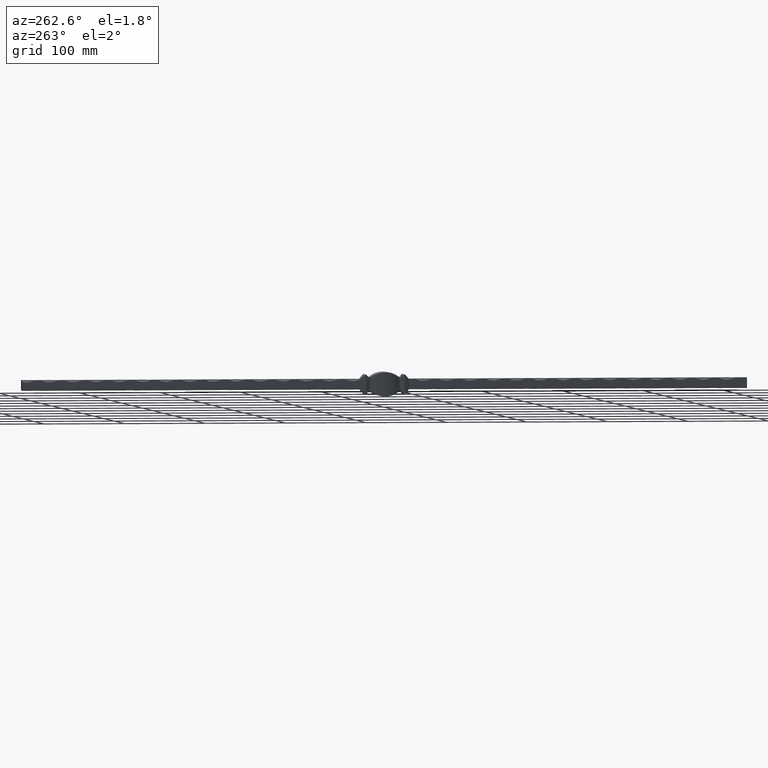
[diagram: clean part render]
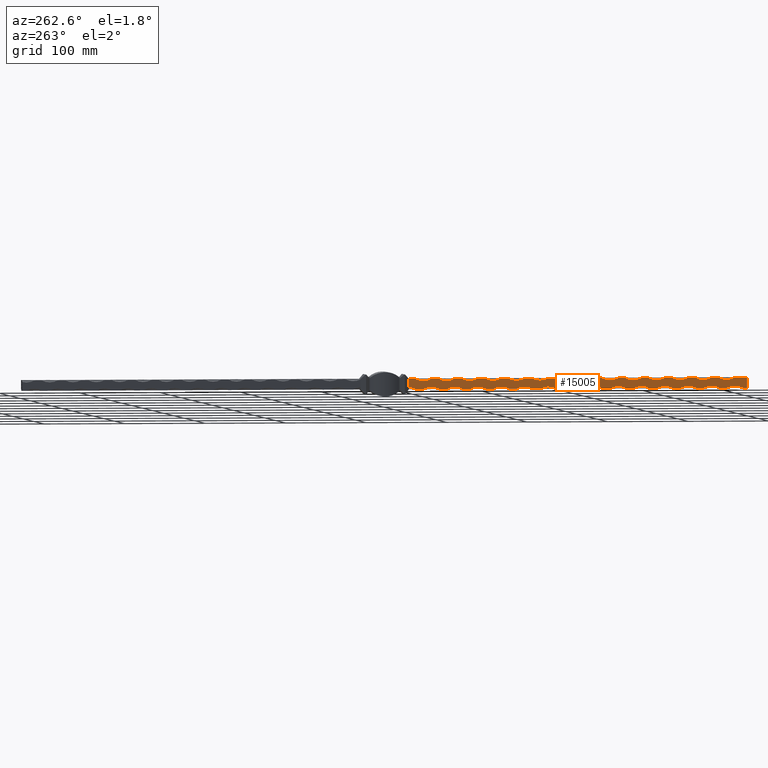
[diagram: same view with one face highlighted and labeled with its STEP entity id]
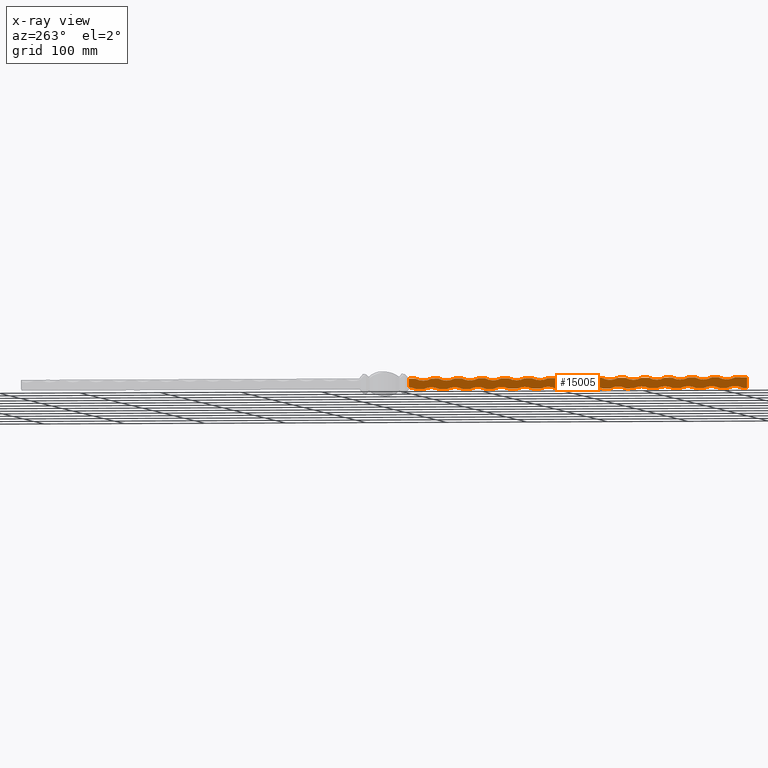
[diagram: x-ray of the same camera — body ghosted, the highlighted face saturated]
A machine part, auxiliary view. The second image highlights one B-rep face of the part: STEP entity #15005.
The next image is the same camera in x-ray: the body ghosted, the highlighted face saturated — about 0% of this face is hidden behind the body in this view.
In plain terms, the highlighted planar face has unit normal (1, 0, -0).
Its self-contained STEP definition (entity closure, byte-faithful):
#12 = EDGE_CURVE ( 'NONE', #5733, #3149, #8410, .T. ) ;
#15 = VECTOR ( 'NONE', #12182, 1000.000000000000000 ) ;
#52 = CARTESIAN_POINT ( 'NONE',  ( -6.499999999999999112, 450.0000000000000000, 6.500000000000000888 ) ) ;
#58 = VECTOR ( 'NONE', #1897, 1000.000000000000000 ) ;
#85 = CARTESIAN_POINT ( 'NONE',  ( -6.500000000000082601, -415.0000000000000000, 6.500000000000000888 ) ) ;
#94 = CARTESIAN_POINT ( 'NONE',  ( -6.500000000000000888, 450.0000000000000000, -6.499999999999999112 ) ) ;
#238 = AXIS2_PLACEMENT_3D ( 'NONE', #3707, #8437, #9771 ) ;
#247 = CARTESIAN_POINT ( 'NONE',  ( -6.500000000000002665, -77.00000000000001421, -6.499999999999999112 ) ) ;
#270 = CARTESIAN_POINT ( 'NONE',  ( -6.499999999999999112, -87.00000000000005684, 6.500000000000000888 ) ) ;
#295 = EDGE_CURVE ( 'NONE', #1562, #1269, #7463, .T. ) ;
#358 = CARTESIAN_POINT ( 'NONE',  ( -6.500000000000055067, -222.0000000000000284, 25.24999999999998934 ) ) ;
#397 = CARTESIAN_POINT ( 'NONE',  ( -6.500000000000005329, -290.0000000000000568, -25.24999999999997513 ) ) ;
#418 = AXIS2_PLACEMENT_3D ( 'NONE', #2967, #15017, #11486 ) ;
#428 = VECTOR ( 'NONE', #9554, 1000.000000000000000 ) ;
#471 = CARTESIAN_POINT ( 'NONE',  ( -6.500000000000002665, -30.00000000000000000, -4.023542452872613140 ) ) ;
#489 = VERTEX_POINT ( 'NONE', #2640 ) ;
#500 = ORIENTED_EDGE ( 'NONE', *, *, #717, .F. ) ;
#576 = ORIENTED_EDGE ( 'NONE', *, *, #12781, .T. ) ;
#577 = EDGE_CURVE ( 'NONE', #3587, #14415, #8593, .T. ) ;
#607 = VECTOR ( 'NONE', #6038, 1000.000000000000000 ) ;
#618 = EDGE_CURVE ( 'NONE', #1461, #12590, #995, .T. ) ;
#659 = CARTESIAN_POINT ( 'NONE',  ( -6.500000000000077272, -386.0000000000000000, 6.500000000000000888 ) ) ;
#669 = DIRECTION ( 'NONE',  ( 1.000000000000000000, 0.000000000000000000, -1.334402673828313093E-16 ) ) ;
#670 = ORIENTED_EDGE ( 'NONE', *, *, #14378, .F. ) ;
#706 = DIRECTION ( 'NONE',  ( 1.334402673828313339E-16, 0.000000000000000000, 1.000000000000000000 ) ) ;
#717 = EDGE_CURVE ( 'NONE', #5733, #8425, #13152, .T. ) ;
#732 = CARTESIAN_POINT ( 'NONE',  ( -6.499999999999999112, -58.00000000000003553, 6.500000000000000888 ) ) ;
#882 = VECTOR ( 'NONE', #7130, 1000.000000000000000 ) ;
#971 = DIRECTION ( 'NONE',  ( -0.000000000000000000, -1.000000000000000000, -0.000000000000000000 ) ) ;
#995 = CIRCLE ( 'NONE', #3431, 21.24999999999999645 ) ;
#1012 = CARTESIAN_POINT ( 'NONE',  ( -6.500000000000002665, -425.0000000000000000, -6.499999999999999112 ) ) ;
#1111 = EDGE_CURVE ( 'NONE', #2373, #1284, #5195, .T. ) ;
#1114 = AXIS2_PLACEMENT_3D ( 'NONE', #11058, #1395, #10894 ) ;
#1118 = DIRECTION ( 'NONE',  ( -0.000000000000000000, -1.000000000000000000, -0.000000000000000000 ) ) ;
#1189 = VERTEX_POINT ( 'NONE', #3457 ) ;
#1268 = EDGE_CURVE ( 'NONE', #3725, #3806, #14650, .T. ) ;
#1269 = VERTEX_POINT ( 'NONE', #10102 ) ;
#1273 = CARTESIAN_POINT ( 'NONE',  ( -6.500000000000000888, 450.0000000000000000, -6.499999999999999112 ) ) ;
#1284 = VERTEX_POINT ( 'NONE', #6284 ) ;
#1360 = VERTEX_POINT ( 'NONE', #10579 ) ;
#1369 = ORIENTED_EDGE ( 'NONE', *, *, #14936, .T. ) ;
#1380 = CARTESIAN_POINT ( 'NONE',  ( -6.499999999999999112, -377.0000000000002274, 6.500000000000000888 ) ) ;
#1395 = DIRECTION ( 'NONE',  ( 1.000000000000000000, 0.000000000000000000, -1.334402673828313093E-16 ) ) ;
#1461 = VERTEX_POINT ( 'NONE', #1012 ) ;
#1473 = CARTESIAN_POINT ( 'NONE',  ( -6.500000000000002665, -280.0000000000000000, -6.499999999999999112 ) ) ;
#1518 = DIRECTION ( 'NONE',  ( -1.224510688924805095E-16, 0.000000000000000000, -1.000000000000000000 ) ) ;
#1534 = CIRCLE ( 'NONE', #10071, 21.24999999999999645 ) ;
#1562 = VERTEX_POINT ( 'NONE', #15690 ) ;
#1571 = AXIS2_PLACEMENT_3D ( 'NONE', #7701, #9076, #8921 ) ;
#1603 = DIRECTION ( 'NONE',  ( -1.224510688924805095E-16, 0.000000000000000000, -1.000000000000000000 ) ) ;
#1638 = AXIS2_PLACEMENT_3D ( 'NONE', #1991, #11707, #9148 ) ;
#1672 = DIRECTION ( 'NONE',  ( -1.000000000000000000, -0.000000000000000000, 1.334402673828313093E-16 ) ) ;
#1685 = DIRECTION ( 'NONE',  ( -1.224510688924805095E-16, 0.000000000000000000, -1.000000000000000000 ) ) ;
#1706 = CARTESIAN_POINT ( 'NONE',  ( -6.500000000000060396, -251.0000000000000568, 25.24999999999998934 ) ) ;
#1707 = ORIENTED_EDGE ( 'NONE', *, *, #10370, .F. ) ;
#1723 = VECTOR ( 'NONE', #6521, 1000.000000000000000 ) ;
#1762 = VERTEX_POINT ( 'NONE', #1879 ) ;
#1769 = EDGE_CURVE ( 'NONE', #15129, #11228, #3621, .T. ) ;
#1803 = DIRECTION ( 'NONE',  ( -1.000000000000000000, -0.000000000000000000, 1.334402673828313093E-16 ) ) ;
#1873 = CARTESIAN_POINT ( 'NONE',  ( -6.500000000000002665, -396.0000000000000000, -6.499999999999999112 ) ) ;
#1879 = CARTESIAN_POINT ( 'NONE',  ( -6.500000000000002665, -39.00000000000004974, -6.499999999999999112 ) ) ;
#1897 = DIRECTION ( 'NONE',  ( -0.000000000000000000, -1.000000000000000000, -0.000000000000000000 ) ) ;
#1988 = EDGE_CURVE ( 'NONE', #7993, #3587, #11800, .T. ) ;
#1991 = CARTESIAN_POINT ( 'NONE',  ( -6.500000000000071942, -309.0000000000000568, 25.24999999999998934 ) ) ;
#1998 = CARTESIAN_POINT ( 'NONE',  ( -6.499999999999999112, 450.0000000000000000, 6.500000000000000888 ) ) ;
#2042 = CIRCLE ( 'NONE', #10432, 21.24999999999999645 ) ;
#2084 = VERTEX_POINT ( 'NONE', #13803 ) ;
#2123 = VERTEX_POINT ( 'NONE', #5182 ) ;
#2242 = EDGE_CURVE ( 'NONE', #11151, #14208, #1534, .T. ) ;
#2274 = DIRECTION ( 'NONE',  ( -1.224510688924805095E-16, 0.000000000000000000, -1.000000000000000000 ) ) ;
#2291 = EDGE_CURVE ( 'NONE', #1762, #9842, #6666, .T. ) ;
#2318 = CARTESIAN_POINT ( 'NONE',  ( -6.500000000000000888, 450.0000000000000000, -6.499999999999999112 ) ) ;
#2364 = CARTESIAN_POINT ( 'NONE',  ( -6.499999999999999112, 450.0000000000000000, 6.500000000000000888 ) ) ;
#2373 = VERTEX_POINT ( 'NONE', #14337 ) ;
#2386 = ORIENTED_EDGE ( 'NONE', *, *, #2291, .T. ) ;
#2407 = CARTESIAN_POINT ( 'NONE',  ( -6.500000000000000888, 450.0000000000000000, -6.499999999999999112 ) ) ;
#2411 = LINE ( 'NONE', #14739, #9255 ) ;
#2413 = DIRECTION ( 'NONE',  ( -1.224510688924805834E-16, -1.044915787882500979E-14, -1.000000000000000000 ) ) ;
#2419 = EDGE_CURVE ( 'NONE', #10559, #11341, #14634, .T. ) ;
#2486 = DIRECTION ( 'NONE',  ( 1.000000000000000000, 0.000000000000000000, -1.334402673828313093E-16 ) ) ;
#2527 = DIRECTION ( 'NONE',  ( -1.000000000000000000, -0.000000000000000000, 1.334402673828313093E-16 ) ) ;
#2529 = EDGE_CURVE ( 'NONE', #14296, #6103, #9315, .T. ) ;
#2533 = CARTESIAN_POINT ( 'NONE',  ( -6.500000000000021316, -48.00000000000002842, 25.24999999999998934 ) ) ;
#2587 = ORIENTED_EDGE ( 'NONE', *, *, #2242, .T. ) ;
#2600 = VERTEX_POINT ( 'NONE', #11673 ) ;
#2608 = VECTOR ( 'NONE', #10574, 1000.000000000000000 ) ;
#2638 = DIRECTION ( 'NONE',  ( -0.000000000000000000, -1.000000000000000000, -0.000000000000000000 ) ) ;
#2640 = CARTESIAN_POINT ( 'NONE',  ( -6.500000000000002665, -338.0000000000000000, -6.499999999999999112 ) ) ;
#2648 = VERTEX_POINT ( 'NONE', #14937 ) ;
#2649 = LINE ( 'NONE', #6572, #1723 ) ;
#2673 = EDGE_CURVE ( 'NONE', #3806, #1189, #6856, .T. ) ;
#2691 = DIRECTION ( 'NONE',  ( 1.000000000000000000, 0.000000000000000000, -1.334402673828313093E-16 ) ) ;
#2799 = DIRECTION ( 'NONE',  ( -0.000000000000000000, -1.000000000000000000, -0.000000000000000000 ) ) ;
#2847 = LINE ( 'NONE', #7382, #12161 ) ;
#2848 = CARTESIAN_POINT ( 'NONE',  ( -6.500000000000002665, -97.00000000000005684, -6.499999999999999112 ) ) ;
#2856 = DIRECTION ( 'NONE',  ( -1.224510688924805834E-16, -1.044915787882500979E-14, -1.000000000000000000 ) ) ;
#2858 = AXIS2_PLACEMENT_3D ( 'NONE', #13248, #13144, #2413 ) ;
#2880 = LINE ( 'NONE', #10456, #10120 ) ;
#2887 = CARTESIAN_POINT ( 'NONE',  ( -6.500000000000054179, -270.0000000000000000, 6.500000000000000888 ) ) ;
#2924 = CIRCLE ( 'NONE', #6928, 21.24999999999998579 ) ;
#2950 = EDGE_CURVE ( 'NONE', #7912, #7614, #14883, .T. ) ;
#2967 = CARTESIAN_POINT ( 'NONE',  ( -6.500000000000043521, -164.0000000000000284, 25.24999999999998934 ) ) ;
#3005 = CARTESIAN_POINT ( 'NONE',  ( -6.500000000000048850, -193.0000000000000284, 25.24999999999998934 ) ) ;
#3036 = ORIENTED_EDGE ( 'NONE', *, *, #2529, .F. ) ;
#3043 = ORIENTED_EDGE ( 'NONE', *, *, #11784, .F. ) ;
#3045 = ORIENTED_EDGE ( 'NONE', *, *, #2419, .F. ) ;
#3060 = CARTESIAN_POINT ( 'NONE',  ( -6.500000000000005329, -435.0000000000000000, -25.24999999999997513 ) ) ;
#3085 = VECTOR ( 'NONE', #10856, 1000.000000000000000 ) ;
#3110 = DIRECTION ( 'NONE',  ( -1.224510688924805095E-16, 0.000000000000000000, -1.000000000000000000 ) ) ;
#3149 = VERTEX_POINT ( 'NONE', #471 ) ;
#3173 = CIRCLE ( 'NONE', #10942, 21.24999999999999645 ) ;
#3203 = ORIENTED_EDGE ( 'NONE', *, *, #14252, .T. ) ;
#3224 = EDGE_CURVE ( 'NONE', #489, #4301, #6168, .T. ) ;
#3274 = EDGE_CURVE ( 'NONE', #10440, #2084, #6354, .T. ) ;
#3431 = AXIS2_PLACEMENT_3D ( 'NONE', #3060, #13999, #12675 ) ;
#3455 = EDGE_CURVE ( 'NONE', #7614, #7993, #6547, .T. ) ;
#3457 = CARTESIAN_POINT ( 'NONE',  ( -6.500000000000002665, -106.0000000000000142, -6.499999999999999112 ) ) ;
#3537 = CIRCLE ( 'NONE', #15498, 21.24999999999999645 ) ;
#3587 = VERTEX_POINT ( 'NONE', #8230 ) ;
#3596 = VERTEX_POINT ( 'NONE', #11891 ) ;
#3604 = VECTOR ( 'NONE', #8805, 1000.000000000000000 ) ;
#3619 = ORIENTED_EDGE ( 'NONE', *, *, #12887, .T. ) ;
#3621 = CIRCLE ( 'NONE', #1638, 21.24999999999998579 ) ;
#3625 = LINE ( 'NONE', #7441, #15 ) ;
#3631 = EDGE_CURVE ( 'NONE', #8425, #5017, #15067, .T. ) ;
#3640 = CARTESIAN_POINT ( 'NONE',  ( -6.499999999999999112, 450.0000000000000000, 6.500000000000000888 ) ) ;
#3658 = LINE ( 'NONE', #11695, #428 ) ;
#3707 = CARTESIAN_POINT ( 'NONE',  ( -6.500000000000005329, -377.0000000000000000, -25.24999999999997513 ) ) ;
#3725 = VERTEX_POINT ( 'NONE', #247 ) ;
#3729 = VECTOR ( 'NONE', #13432, 1000.000000000000000 ) ;
#3737 = VERTEX_POINT ( 'NONE', #12461 ) ;
#3800 = DIRECTION ( 'NONE',  ( -1.224510688924805834E-16, -7.836868409118757340E-15, -1.000000000000000000 ) ) ;
#3806 = VERTEX_POINT ( 'NONE', #2848 ) ;
#3922 = LINE ( 'NONE', #11206, #4117 ) ;
#3944 = AXIS2_PLACEMENT_3D ( 'NONE', #6448, #1672, #4153 ) ;
#3967 = CARTESIAN_POINT ( 'NONE',  ( -6.500000000000021316, -96.00000000000000000, 6.500000000000000888 ) ) ;
#4117 = VECTOR ( 'NONE', #2638, 1000.000000000000000 ) ;
#4118 = EDGE_CURVE ( 'NONE', #8116, #2373, #7854, .T. ) ;
#4141 = DIRECTION ( 'NONE',  ( -1.224510688924805095E-16, 0.000000000000000000, -1.000000000000000000 ) ) ;
#4153 = DIRECTION ( 'NONE',  ( -1.224510688924805834E-16, 0.000000000000000000, -1.000000000000000000 ) ) ;
#4158 = EDGE_CURVE ( 'NONE', #5017, #8619, #15603, .T. ) ;
#4163 = AXIS2_PLACEMENT_3D ( 'NONE', #12378, #8874, #1603 ) ;
#4179 = DIRECTION ( 'NONE',  ( -1.000000000000000000, -0.000000000000000000, 1.334402673828313093E-16 ) ) ;
#4180 = EDGE_CURVE ( 'NONE', #13016, #3725, #12023, .T. ) ;
#4188 = VECTOR ( 'NONE', #6148, 1000.000000000000000 ) ;
#4242 = CARTESIAN_POINT ( 'NONE',  ( -6.500000000000009770, -38.00000000000000711, 6.500000000000000888 ) ) ;
#4298 = DIRECTION ( 'NONE',  ( -1.224510688924805834E-16, -5.224578939412504893E-15, -1.000000000000000000 ) ) ;
#4301 = VERTEX_POINT ( 'NONE', #11130 ) ;
#4308 = CARTESIAN_POINT ( 'NONE',  ( -6.500000000000002665, -48.00000000000000000, -6.499999999999999112 ) ) ;
#4342 = AXIS2_PLACEMENT_3D ( 'NONE', #4732, #7053, #4680 ) ;
#4349 = DIRECTION ( 'NONE',  ( -0.000000000000000000, -1.000000000000000000, -0.000000000000000000 ) ) ;
#4428 = VERTEX_POINT ( 'NONE', #11343 ) ;
#4442 = CARTESIAN_POINT ( 'NONE',  ( -6.500000000000002665, -126.0000000000000568, -6.499999999999999112 ) ) ;
#4523 = LINE ( 'NONE', #6071, #3729 ) ;
#4529 = CARTESIAN_POINT ( 'NONE',  ( -6.500000000000000888, 450.0000000000000000, -6.499999999999999112 ) ) ;
#4540 = AXIS2_PLACEMENT_3D ( 'NONE', #8791, #5256, #1518 ) ;
#4578 = DIRECTION ( 'NONE',  ( -1.224510688924805095E-16, 0.000000000000000000, -1.000000000000000000 ) ) ;
#4628 = ORIENTED_EDGE ( 'NONE', *, *, #2950, .T. ) ;
#4650 = VECTOR ( 'NONE', #13160, 1000.000000000000000 ) ;
#4680 = DIRECTION ( 'NONE',  ( -1.334402673828313093E-16, 0.000000000000000000, -1.000000000000000000 ) ) ;
#4705 = VERTEX_POINT ( 'NONE', #4915 ) ;
#4724 = EDGE_CURVE ( 'NONE', #9311, #3596, #10492, .T. ) ;
#4732 = CARTESIAN_POINT ( 'NONE',  ( -6.500000000000000888, 450.0000000000000000, -6.499999999999999112 ) ) ;
#4734 = CIRCLE ( 'NONE', #4540, 21.24999999999999645 ) ;
#4785 = DIRECTION ( 'NONE',  ( 1.000000000000000000, 0.000000000000000000, -1.334402673828313093E-16 ) ) ;
#4800 = AXIS2_PLACEMENT_3D ( 'NONE', #12685, #11430, #4141 ) ;
#4889 = CARTESIAN_POINT ( 'NONE',  ( -6.500000000000002665, -271.0000000000000568, -6.499999999999999112 ) ) ;
#4905 = DIRECTION ( 'NONE',  ( -1.224510688924805095E-16, 0.000000000000000000, -1.000000000000000000 ) ) ;
#4915 = CARTESIAN_POINT ( 'NONE',  ( -6.499999999999997335, -406.0000000000002274, 6.500000000000000888 ) ) ;
#4917 = CARTESIAN_POINT ( 'NONE',  ( -6.500000000000065725, -328.0000000000000000, 6.500000000000000888 ) ) ;
#4987 = ORIENTED_EDGE ( 'NONE', *, *, #1769, .F. ) ;
#5017 = VERTEX_POINT ( 'NONE', #732 ) ;
#5065 = ORIENTED_EDGE ( 'NONE', *, *, #12873, .T. ) ;
#5090 = CARTESIAN_POINT ( 'NONE',  ( -6.500000000000002665, -416.0000000000001137, -6.499999999999999112 ) ) ;
#5098 = DIRECTION ( 'NONE',  ( -1.224510688924805834E-16, -7.836868409118757340E-15, -1.000000000000000000 ) ) ;
#5154 = DIRECTION ( 'NONE',  ( -0.000000000000000000, -1.000000000000000000, -0.000000000000000000 ) ) ;
#5182 = CARTESIAN_POINT ( 'NONE',  ( -6.499999999999999112, -232.0000000000000853, 6.500000000000000888 ) ) ;
#5195 = LINE ( 'NONE', #8199, #15397 ) ;
#5256 = DIRECTION ( 'NONE',  ( 1.000000000000000000, 0.000000000000000000, -1.334402673828313093E-16 ) ) ;
#5293 = CIRCLE ( 'NONE', #8297, 21.24999999999999645 ) ;
#5327 = DIRECTION ( 'NONE',  ( -1.000000000000000000, -0.000000000000000000, 1.334402673828313093E-16 ) ) ;
#5354 = ORIENTED_EDGE ( 'NONE', *, *, #15467, .T. ) ;
#5372 = DIRECTION ( 'NONE',  ( -1.224510688924805834E-16, 6.530723674265631117E-15, -1.000000000000000000 ) ) ;
#5378 = EDGE_CURVE ( 'NONE', #11341, #1269, #15575, .T. ) ;
#5406 = ORIENTED_EDGE ( 'NONE', *, *, #10498, .F. ) ;
#5415 = AXIS2_PLACEMENT_3D ( 'NONE', #14258, #2691, #12225 ) ;
#5452 = ORIENTED_EDGE ( 'NONE', *, *, #3274, .F. ) ;
#5577 = CARTESIAN_POINT ( 'NONE',  ( -6.500000000000000888, -29.99999999999997158, -6.499999999999999112 ) ) ;
#5590 = DIRECTION ( 'NONE',  ( -1.000000000000000000, -0.000000000000000000, 1.334402673828313093E-16 ) ) ;
#5598 = CARTESIAN_POINT ( 'NONE',  ( -6.499999999999999112, -319.0000000000001705, 6.500000000000000888 ) ) ;
#5663 = VERTEX_POINT ( 'NONE', #15308 ) ;
#5696 = CIRCLE ( 'NONE', #1571, 21.24999999999999645 ) ;
#5733 = VERTEX_POINT ( 'NONE', #6124 ) ;
#5850 = LINE ( 'NONE', #10773, #2608 ) ;
#5904 = LINE ( 'NONE', #13284, #14438 ) ;
#5938 = EDGE_CURVE ( 'NONE', #12590, #1562, #9708, .T. ) ;
#5940 = CARTESIAN_POINT ( 'NONE',  ( -6.500000000000015099, -67.00000000000000000, 6.500000000000000888 ) ) ;
#5993 = CARTESIAN_POINT ( 'NONE',  ( -6.500000000000005329, -261.0000000000000000, -25.24999999999997513 ) ) ;
#6027 = DIRECTION ( 'NONE',  ( -0.000000000000000000, -1.000000000000000000, -0.000000000000000000 ) ) ;
#6038 = DIRECTION ( 'NONE',  ( -0.000000000000000000, -1.000000000000000000, -0.000000000000000000 ) ) ;
#6071 = CARTESIAN_POINT ( 'NONE',  ( -6.499999999999999112, 450.0000000000000000, 6.500000000000000888 ) ) ;
#6103 = VERTEX_POINT ( 'NONE', #659 ) ;
#6110 = DIRECTION ( 'NONE',  ( -0.000000000000000000, -1.000000000000000000, -0.000000000000000000 ) ) ;
#6117 = CARTESIAN_POINT ( 'NONE',  ( -6.500000000000002665, -155.0000000000000853, -6.499999999999999112 ) ) ;
#6124 = CARTESIAN_POINT ( 'NONE',  ( -6.499999999999999112, -29.99999999999997158, 6.500000000000000888 ) ) ;
#6126 = ORIENTED_EDGE ( 'NONE', *, *, #8327, .T. ) ;
#6148 = DIRECTION ( 'NONE',  ( -0.000000000000000000, -1.000000000000000000, -0.000000000000000000 ) ) ;
#6168 = CIRCLE ( 'NONE', #5415, 21.24999999999999645 ) ;
#6173 = VERTEX_POINT ( 'NONE', #8403 ) ;
#6206 = EDGE_CURVE ( 'NONE', #4428, #7861, #5904, .T. ) ;
#6284 = CARTESIAN_POINT ( 'NONE',  ( -6.500000000000071942, -357.0000000000000000, 6.500000000000000888 ) ) ;
#6353 = EDGE_CURVE ( 'NONE', #11228, #8116, #2847, .T. ) ;
#6354 = CIRCLE ( 'NONE', #418, 21.24999999999998579 ) ;
#6386 = VERTEX_POINT ( 'NONE', #270 ) ;
#6448 = CARTESIAN_POINT ( 'NONE',  ( -6.500000000000026645, -77.00000000000004263, 25.24999999999998934 ) ) ;
#6521 = DIRECTION ( 'NONE',  ( -0.000000000000000000, -1.000000000000000000, -0.000000000000000000 ) ) ;
#6547 = LINE ( 'NONE', #8128, #4650 ) ;
#6563 = CARTESIAN_POINT ( 'NONE',  ( -6.500000000000000888, -450.0000000000000000, -6.499999999999999112 ) ) ;
#6572 = CARTESIAN_POINT ( 'NONE',  ( -6.499999999999999112, 450.0000000000000000, 6.500000000000000888 ) ) ;
#6629 = CARTESIAN_POINT ( 'NONE',  ( -6.500000000000002665, -251.0000000000000000, -6.499999999999999112 ) ) ;
#6666 = LINE ( 'NONE', #4529, #14059 ) ;
#6683 = ORIENTED_EDGE ( 'NONE', *, *, #12, .T. ) ;
#6700 = VECTOR ( 'NONE', #7628, 1000.000000000000000 ) ;
#6795 = DIRECTION ( 'NONE',  ( -1.334402673828313093E-16, 0.000000000000000000, -1.000000000000000000 ) ) ;
#6799 = ORIENTED_EDGE ( 'NONE', *, *, #13651, .F. ) ;
#6856 = LINE ( 'NONE', #7948, #58 ) ;
#6928 = AXIS2_PLACEMENT_3D ( 'NONE', #13180, #8497, #13337 ) ;
#7053 = DIRECTION ( 'NONE',  ( 1.000000000000000000, 0.000000000000000000, -1.334402673828313093E-16 ) ) ;
#7130 = DIRECTION ( 'NONE',  ( -0.000000000000000000, -1.000000000000000000, -0.000000000000000000 ) ) ;
#7167 = AXIS2_PLACEMENT_3D ( 'NONE', #3005, #1803, #5372 ) ;
#7184 = ORIENTED_EDGE ( 'NONE', *, *, #1268, .T. ) ;
#7199 = ORIENTED_EDGE ( 'NONE', *, *, #11616, .F. ) ;
#7218 = VERTEX_POINT ( 'NONE', #4889 ) ;
#7310 = CARTESIAN_POINT ( 'NONE',  ( -6.500000000000005329, -406.0000000000000000, -25.24999999999997513 ) ) ;
#7382 = CARTESIAN_POINT ( 'NONE',  ( -6.499999999999999112, 450.0000000000000000, 6.500000000000000888 ) ) ;
#7389 = ORIENTED_EDGE ( 'NONE', *, *, #5938, .T. ) ;
#7441 = CARTESIAN_POINT ( 'NONE',  ( -6.500000000000000888, 450.0000000000000000, -6.499999999999999112 ) ) ;
#7463 = LINE ( 'NONE', #6563, #11280 ) ;
#7474 = CARTESIAN_POINT ( 'NONE',  ( -6.500000000000038192, -183.0000000000000284, 6.500000000000000888 ) ) ;
#7513 = ORIENTED_EDGE ( 'NONE', *, *, #4158, .F. ) ;
#7575 = EDGE_CURVE ( 'NONE', #8289, #9311, #2924, .T. ) ;
#7614 = VERTEX_POINT ( 'NONE', #8454 ) ;
#7628 = DIRECTION ( 'NONE',  ( -0.000000000000000000, -1.000000000000000000, -0.000000000000000000 ) ) ;
#7639 = VECTOR ( 'NONE', #13554, 1000.000000000000000 ) ;
#7701 = CARTESIAN_POINT ( 'NONE',  ( -6.500000000000005329, -29.00000000000000000, -25.24999999999997513 ) ) ;
#7720 = EDGE_CURVE ( 'NONE', #8619, #6386, #10729, .T. ) ;
#7750 = ORIENTED_EDGE ( 'NONE', *, *, #1111, .F. ) ;
#7751 = AXIS2_PLACEMENT_3D ( 'NONE', #13206, #9441, #14475 ) ;
#7821 = ORIENTED_EDGE ( 'NONE', *, *, #12972, .T. ) ;
#7854 = CIRCLE ( 'NONE', #2858, 21.24999999999998579 ) ;
#7861 = VERTEX_POINT ( 'NONE', #1873 ) ;
#7912 = VERTEX_POINT ( 'NONE', #8320 ) ;
#7948 = CARTESIAN_POINT ( 'NONE',  ( -6.500000000000000888, 450.0000000000000000, -6.499999999999999112 ) ) ;
#7952 = CARTESIAN_POINT ( 'NONE',  ( -6.500000000000005329, -203.0000000000000000, -25.24999999999997513 ) ) ;
#7966 = LINE ( 'NONE', #10136, #15715 ) ;
#7993 = VERTEX_POINT ( 'NONE', #11705 ) ;
#7995 = AXIS2_PLACEMENT_3D ( 'NONE', #1706, #5327, #4298 ) ;
#7997 = CIRCLE ( 'NONE', #9593, 21.24999999999998579 ) ;
#8034 = VECTOR ( 'NONE', #6795, 1000.000000000000000 ) ;
#8051 = AXIS2_PLACEMENT_3D ( 'NONE', #2533, #14632, #13366 ) ;
#8062 = ORIENTED_EDGE ( 'NONE', *, *, #11764, .F. ) ;
#8116 = VERTEX_POINT ( 'NONE', #4917 ) ;
#8128 = CARTESIAN_POINT ( 'NONE',  ( -6.500000000000000888, 450.0000000000000000, -6.499999999999999112 ) ) ;
#8133 = ORIENTED_EDGE ( 'NONE', *, *, #1988, .T. ) ;
#8199 = CARTESIAN_POINT ( 'NONE',  ( -6.499999999999999112, 450.0000000000000000, 6.500000000000000888 ) ) ;
#8230 = CARTESIAN_POINT ( 'NONE',  ( -6.500000000000002665, -242.0000000000000568, -6.499999999999999112 ) ) ;
#8289 = VERTEX_POINT ( 'NONE', #3967 ) ;
#8297 = AXIS2_PLACEMENT_3D ( 'NONE', #7310, #12154, #8534 ) ;
#8320 = CARTESIAN_POINT ( 'NONE',  ( -6.500000000000002665, -193.0000000000000000, -6.499999999999999112 ) ) ;
#8325 = LINE ( 'NONE', #1998, #14398 ) ;
#8327 = EDGE_CURVE ( 'NONE', #2600, #3737, #14887, .T. ) ;
#8403 = CARTESIAN_POINT ( 'NONE',  ( -6.499999999999999112, -290.0000000000002274, 6.500000000000000888 ) ) ;
#8410 = LINE ( 'NONE', #5577, #8034 ) ;
#8425 = VERTEX_POINT ( 'NONE', #4242 ) ;
#8437 = DIRECTION ( 'NONE',  ( 1.000000000000000000, 0.000000000000000000, -1.334402673828313093E-16 ) ) ;
#8443 = AXIS2_PLACEMENT_3D ( 'NONE', #9973, #11093, #3800 ) ;
#8450 = CARTESIAN_POINT ( 'NONE',  ( -6.500000000000048850, -241.0000000000000284, 6.500000000000000888 ) ) ;
#8454 = CARTESIAN_POINT ( 'NONE',  ( -6.500000000000002665, -213.0000000000000853, -6.499999999999999112 ) ) ;
#8483 = CARTESIAN_POINT ( 'NONE',  ( -6.500000000000005329, -58.00000000000000000, -25.24999999999997513 ) ) ;
#8497 = DIRECTION ( 'NONE',  ( -1.000000000000000000, -0.000000000000000000, 1.334402673828313093E-16 ) ) ;
#8511 = VECTOR ( 'NONE', #13058, 1000.000000000000000 ) ;
#8512 = EDGE_CURVE ( 'NONE', #3596, #15144, #15445, .T. ) ;
#8534 = DIRECTION ( 'NONE',  ( -1.224510688924805095E-16, 0.000000000000000000, -1.000000000000000000 ) ) ;
#8571 = DIRECTION ( 'NONE',  ( -1.000000000000000000, -0.000000000000000000, 1.334402673828313093E-16 ) ) ;
#8578 = CIRCLE ( 'NONE', #7751, 21.24999999999998579 ) ;
#8593 = LINE ( 'NONE', #10193, #6700 ) ;
#8619 = VERTEX_POINT ( 'NONE', #5940 ) ;
#8638 = CARTESIAN_POINT ( 'NONE',  ( -6.499999999999999112, -145.0000000000000853, 6.500000000000000888 ) ) ;
#8673 = CIRCLE ( 'NONE', #7995, 21.24999999999998579 ) ;
#8722 = ORIENTED_EDGE ( 'NONE', *, *, #14229, .T. ) ;
#8791 = CARTESIAN_POINT ( 'NONE',  ( -6.500000000000005329, -319.0000000000000000, -25.24999999999997513 ) ) ;
#8805 = DIRECTION ( 'NONE',  ( -0.000000000000000000, -1.000000000000000000, -0.000000000000000000 ) ) ;
#8874 = DIRECTION ( 'NONE',  ( 1.000000000000000000, 0.000000000000000000, -1.334402673828313093E-16 ) ) ;
#8903 = CIRCLE ( 'NONE', #11043, 21.24999999999998579 ) ;
#8921 = DIRECTION ( 'NONE',  ( -1.224510688924805095E-16, 0.000000000000000000, -1.000000000000000000 ) ) ;
#9076 = DIRECTION ( 'NONE',  ( 1.000000000000000000, 0.000000000000000000, -1.334402673828313093E-16 ) ) ;
#9148 = DIRECTION ( 'NONE',  ( -1.224510688924805834E-16, -1.044915787882500979E-14, -1.000000000000000000 ) ) ;
#9162 = ORIENTED_EDGE ( 'NONE', *, *, #13258, .T. ) ;
#9235 = VERTEX_POINT ( 'NONE', #5090 ) ;
#9243 = DIRECTION ( 'NONE',  ( 1.000000000000000000, 0.000000000000000000, -1.334402673828313093E-16 ) ) ;
#9255 = VECTOR ( 'NONE', #9975, 1000.000000000000000 ) ;
#9278 = VERTEX_POINT ( 'NONE', #12334 ) ;
#9291 = DIRECTION ( 'NONE',  ( -0.000000000000000000, -1.000000000000000000, -0.000000000000000000 ) ) ;
#9311 = VERTEX_POINT ( 'NONE', #14815 ) ;
#9315 = LINE ( 'NONE', #13839, #3604 ) ;
#9338 = ORIENTED_EDGE ( 'NONE', *, *, #6206, .T. ) ;
#9435 = CARTESIAN_POINT ( 'NONE',  ( -6.499999999999999112, 450.0000000000000000, 6.500000000000000888 ) ) ;
#9438 = DIRECTION ( 'NONE',  ( -1.224510688924805834E-16, -7.836868409118757340E-15, -1.000000000000000000 ) ) ;
#9441 = DIRECTION ( 'NONE',  ( -1.000000000000000000, -0.000000000000000000, 1.334402673828313093E-16 ) ) ;
#9462 = ORIENTED_EDGE ( 'NONE', *, *, #10396, .F. ) ;
#9554 = DIRECTION ( 'NONE',  ( -0.000000000000000000, -1.000000000000000000, -0.000000000000000000 ) ) ;
#9593 = AXIS2_PLACEMENT_3D ( 'NONE', #358, #4179, #2856 ) ;
#9622 = ORIENTED_EDGE ( 'NONE', *, *, #14670, .F. ) ;
#9665 = CARTESIAN_POINT ( 'NONE',  ( -6.499999999999999112, -435.0000000000002274, 6.500000000000000888 ) ) ;
#9708 = LINE ( 'NONE', #13408, #4188 ) ;
#9757 = ORIENTED_EDGE ( 'NONE', *, *, #295, .T. ) ;
#9771 = DIRECTION ( 'NONE',  ( -1.224510688924805095E-16, 0.000000000000000000, -1.000000000000000000 ) ) ;
#9842 = VERTEX_POINT ( 'NONE', #4308 ) ;
#9926 = CARTESIAN_POINT ( 'NONE',  ( -6.500000000000002665, -329.0000000000000568, -6.499999999999999112 ) ) ;
#9949 = EDGE_CURVE ( 'NONE', #7218, #15213, #3658, .T. ) ;
#9963 = ORIENTED_EDGE ( 'NONE', *, *, #6353, .F. ) ;
#9973 = CARTESIAN_POINT ( 'NONE',  ( -6.500000000000094147, -425.0000000000000568, 25.24999999999998934 ) ) ;
#9975 = DIRECTION ( 'NONE',  ( -0.000000000000000000, -1.000000000000000000, -0.000000000000000000 ) ) ;
#9985 = ORIENTED_EDGE ( 'NONE', *, *, #10655, .T. ) ;
#10049 = LINE ( 'NONE', #94, #11583 ) ;
#10071 = AXIS2_PLACEMENT_3D ( 'NONE', #11842, #9243, #4578 ) ;
#10080 = VERTEX_POINT ( 'NONE', #13369 ) ;
#10102 = CARTESIAN_POINT ( 'NONE',  ( -6.499999999999999112, -450.0000000000000000, 6.500000000000000888 ) ) ;
#10120 = VECTOR ( 'NONE', #4349, 1000.000000000000000 ) ;
#10136 = CARTESIAN_POINT ( 'NONE',  ( -6.500000000000000888, 450.0000000000000000, -6.499999999999999112 ) ) ;
#10151 = ORIENTED_EDGE ( 'NONE', *, *, #11887, .F. ) ;
#10193 = CARTESIAN_POINT ( 'NONE',  ( -6.500000000000000888, 450.0000000000000000, -6.499999999999999112 ) ) ;
#10343 = CARTESIAN_POINT ( 'NONE',  ( -6.500000000000005329, -116.0000000000000000, -25.24999999999997513 ) ) ;
#10370 = EDGE_CURVE ( 'NONE', #9278, #10080, #2880, .T. ) ;
#10396 = EDGE_CURVE ( 'NONE', #13404, #6173, #8578, .T. ) ;
#10429 = VECTOR ( 'NONE', #6110, 1000.000000000000000 ) ;
#10432 = AXIS2_PLACEMENT_3D ( 'NONE', #8483, #2486, #4905 ) ;
#10440 = VERTEX_POINT ( 'NONE', #14374 ) ;
#10456 = CARTESIAN_POINT ( 'NONE',  ( -6.499999999999999112, 450.0000000000000000, 6.500000000000000888 ) ) ;
#10492 = LINE ( 'NONE', #52, #13328 ) ;
#10495 = CIRCLE ( 'NONE', #12731, 21.24999999999999645 ) ;
#10498 = EDGE_CURVE ( 'NONE', #6173, #15129, #13899, .T. ) ;
#10559 = VERTEX_POINT ( 'NONE', #85 ) ;
#10574 = DIRECTION ( 'NONE',  ( -0.000000000000000000, -1.000000000000000000, -0.000000000000000000 ) ) ;
#10579 = CARTESIAN_POINT ( 'NONE',  ( -6.499999999999997335, -261.0000000000001705, 6.500000000000000888 ) ) ;
#10655 = EDGE_CURVE ( 'NONE', #15213, #5663, #10495, .T. ) ;
#10729 = CIRCLE ( 'NONE', #3944, 21.24999999999998579 ) ;
#10773 = CARTESIAN_POINT ( 'NONE',  ( -6.500000000000000888, 450.0000000000000000, -6.499999999999999112 ) ) ;
#10856 = DIRECTION ( 'NONE',  ( -0.000000000000000000, -1.000000000000000000, -0.000000000000000000 ) ) ;
#10868 = PLANE ( 'NONE',  #4342 ) ;
#10894 = DIRECTION ( 'NONE',  ( -1.224510688924805095E-16, 0.000000000000000000, -1.000000000000000000 ) ) ;
#10920 = CARTESIAN_POINT ( 'NONE',  ( -6.500000000000060396, -299.0000000000000000, 6.500000000000000888 ) ) ;
#10925 = CARTESIAN_POINT ( 'NONE',  ( -6.500000000000002665, -309.0000000000000000, -6.499999999999999112 ) ) ;
#10942 = AXIS2_PLACEMENT_3D ( 'NONE', #10343, #13946, #13734 ) ;
#10960 = ORIENTED_EDGE ( 'NONE', *, *, #7575, .F. ) ;
#10974 = CARTESIAN_POINT ( 'NONE',  ( -6.499999999999999112, 450.0000000000000000, 6.500000000000000888 ) ) ;
#11015 = EDGE_CURVE ( 'NONE', #13692, #11151, #3625, .T. ) ;
#11025 = LINE ( 'NONE', #10974, #11963 ) ;
#11043 = AXIS2_PLACEMENT_3D ( 'NONE', #12135, #8571, #5098 ) ;
#11058 = CARTESIAN_POINT ( 'NONE',  ( -6.500000000000005329, -232.0000000000000000, -25.24999999999997513 ) ) ;
#11090 = CARTESIAN_POINT ( 'NONE',  ( -6.499999999999999112, 450.0000000000000000, 6.500000000000000888 ) ) ;
#11093 = DIRECTION ( 'NONE',  ( -1.000000000000000000, -0.000000000000000000, 1.334402673828313093E-16 ) ) ;
#11130 = CARTESIAN_POINT ( 'NONE',  ( -6.500000000000002665, -358.0000000000001137, -6.499999999999999112 ) ) ;
#11151 = VERTEX_POINT ( 'NONE', #11335 ) ;
#11206 = CARTESIAN_POINT ( 'NONE',  ( -6.499999999999999112, 450.0000000000000000, 6.500000000000000888 ) ) ;
#11228 = VERTEX_POINT ( 'NONE', #5598 ) ;
#11280 = VECTOR ( 'NONE', #706, 1000.000000000000000 ) ;
#11335 = CARTESIAN_POINT ( 'NONE',  ( -6.500000000000002665, -135.0000000000000000, -6.499999999999999112 ) ) ;
#11341 = VERTEX_POINT ( 'NONE', #9665 ) ;
#11343 = CARTESIAN_POINT ( 'NONE',  ( -6.500000000000002665, -387.0000000000000568, -6.499999999999999112 ) ) ;
#11344 = EDGE_CURVE ( 'NONE', #2648, #4428, #13684, .T. ) ;
#11388 = LINE ( 'NONE', #1273, #10429 ) ;
#11424 = ORIENTED_EDGE ( 'NONE', *, *, #14477, .F. ) ;
#11430 = DIRECTION ( 'NONE',  ( 1.000000000000000000, 0.000000000000000000, -1.334402673828313093E-16 ) ) ;
#11445 = VECTOR ( 'NONE', #13462, 1000.000000000000000 ) ;
#11486 = DIRECTION ( 'NONE',  ( -1.224510688924805834E-16, -1.044915787882500979E-14, -1.000000000000000000 ) ) ;
#11512 = AXIS2_PLACEMENT_3D ( 'NONE', #12962, #5590, #12905 ) ;
#11514 = VERTEX_POINT ( 'NONE', #9926 ) ;
#11583 = VECTOR ( 'NONE', #12406, 1000.000000000000000 ) ;
#11616 = EDGE_CURVE ( 'NONE', #10080, #2123, #7997, .T. ) ;
#11673 = CARTESIAN_POINT ( 'NONE',  ( -6.500000000000002665, -164.0000000000000000, -6.499999999999999112 ) ) ;
#11695 = CARTESIAN_POINT ( 'NONE',  ( -6.500000000000000888, 450.0000000000000000, -6.499999999999999112 ) ) ;
#11700 = ORIENTED_EDGE ( 'NONE', *, *, #11344, .T. ) ;
#11705 = CARTESIAN_POINT ( 'NONE',  ( -6.500000000000002665, -222.0000000000000000, -6.499999999999999112 ) ) ;
#11707 = DIRECTION ( 'NONE',  ( -1.000000000000000000, -0.000000000000000000, 1.334402673828313093E-16 ) ) ;
#11756 = DIRECTION ( 'NONE',  ( -0.000000000000000000, -1.000000000000000000, -0.000000000000000000 ) ) ;
#11764 = EDGE_CURVE ( 'NONE', #1284, #14296, #15178, .T. ) ;
#11784 = EDGE_CURVE ( 'NONE', #1360, #13404, #11025, .T. ) ;
#11800 = CIRCLE ( 'NONE', #1114, 21.24999999999999645 ) ;
#11842 = CARTESIAN_POINT ( 'NONE',  ( -6.500000000000005329, -145.0000000000000284, -25.24999999999997513 ) ) ;
#11887 = EDGE_CURVE ( 'NONE', #4705, #10559, #2649, .T. ) ;
#11891 = CARTESIAN_POINT ( 'NONE',  ( -6.500000000000026645, -125.0000000000000284, 6.500000000000000888 ) ) ;
#11914 = ORIENTED_EDGE ( 'NONE', *, *, #618, .T. ) ;
#11948 = LINE ( 'NONE', #15472, #8511 ) ;
#11963 = VECTOR ( 'NONE', #12255, 1000.000000000000000 ) ;
#12023 = LINE ( 'NONE', #2318, #7639 ) ;
#12079 = LINE ( 'NONE', #2407, #882 ) ;
#12135 = CARTESIAN_POINT ( 'NONE',  ( -6.500000000000087930, -396.0000000000000568, 25.24999999999998934 ) ) ;
#12154 = DIRECTION ( 'NONE',  ( 1.000000000000000000, 0.000000000000000000, -1.334402673828313093E-16 ) ) ;
#12161 = VECTOR ( 'NONE', #14805, 1000.000000000000000 ) ;
#12171 = ORIENTED_EDGE ( 'NONE', *, *, #14769, .F. ) ;
#12182 = DIRECTION ( 'NONE',  ( -0.000000000000000000, -1.000000000000000000, -0.000000000000000000 ) ) ;
#12221 = AXIS2_PLACEMENT_3D ( 'NONE', #7952, #669, #3110 ) ;
#12225 = DIRECTION ( 'NONE',  ( -1.224510688924805095E-16, 0.000000000000000000, -1.000000000000000000 ) ) ;
#12255 = DIRECTION ( 'NONE',  ( -0.000000000000000000, -1.000000000000000000, -0.000000000000000000 ) ) ;
#12265 = ORIENTED_EDGE ( 'NONE', *, *, #3224, .T. ) ;
#12334 = CARTESIAN_POINT ( 'NONE',  ( -6.499999999999999112, -203.0000000000000853, 6.500000000000000888 ) ) ;
#12378 = CARTESIAN_POINT ( 'NONE',  ( -6.500000000000005329, -87.00000000000001421, -25.24999999999997513 ) ) ;
#12406 = DIRECTION ( 'NONE',  ( -0.000000000000000000, -1.000000000000000000, -0.000000000000000000 ) ) ;
#12461 = CARTESIAN_POINT ( 'NONE',  ( -6.500000000000002665, -184.0000000000000568, -6.499999999999999112 ) ) ;
#12506 = EDGE_CURVE ( 'NONE', #3149, #1762, #5696, .T. ) ;
#12556 = CARTESIAN_POINT ( 'NONE',  ( -6.500000000000002665, -68.00000000000005684, -6.499999999999999112 ) ) ;
#12590 = VERTEX_POINT ( 'NONE', #15325 ) ;
#12675 = DIRECTION ( 'NONE',  ( -1.224510688924805095E-16, 0.000000000000000000, -1.000000000000000000 ) ) ;
#12677 = ORIENTED_EDGE ( 'NONE', *, *, #4724, .F. ) ;
#12685 = CARTESIAN_POINT ( 'NONE',  ( -6.500000000000005329, -174.0000000000000284, -25.24999999999997513 ) ) ;
#12705 = ORIENTED_EDGE ( 'NONE', *, *, #4180, .T. ) ;
#12731 = AXIS2_PLACEMENT_3D ( 'NONE', #397, #13566, #1685 ) ;
#12739 = ORIENTED_EDGE ( 'NONE', *, *, #14392, .F. ) ;
#12781 = EDGE_CURVE ( 'NONE', #3737, #7912, #11948, .T. ) ;
#12827 = VERTEX_POINT ( 'NONE', #10925 ) ;
#12856 = AXIS2_PLACEMENT_3D ( 'NONE', #13148, #2527, #9438 ) ;
#12873 = EDGE_CURVE ( 'NONE', #4301, #2648, #11388, .T. ) ;
#12887 = EDGE_CURVE ( 'NONE', #11514, #489, #10049, .T. ) ;
#12905 = DIRECTION ( 'NONE',  ( -1.224510688924805834E-16, 6.530723674265631117E-15, -1.000000000000000000 ) ) ;
#12962 = CARTESIAN_POINT ( 'NONE',  ( -6.500000000000038192, -135.0000000000000284, 25.24999999999998934 ) ) ;
#12972 = EDGE_CURVE ( 'NONE', #9235, #1461, #7966, .T. ) ;
#13016 = VERTEX_POINT ( 'NONE', #12556 ) ;
#13058 = DIRECTION ( 'NONE',  ( -0.000000000000000000, -1.000000000000000000, -0.000000000000000000 ) ) ;
#13141 = EDGE_CURVE ( 'NONE', #6103, #4705, #8903, .T. ) ;
#13144 = DIRECTION ( 'NONE',  ( -1.000000000000000000, -0.000000000000000000, 1.334402673828313093E-16 ) ) ;
#13148 = CARTESIAN_POINT ( 'NONE',  ( -6.500000000000082601, -367.0000000000000568, 25.24999999999998934 ) ) ;
#13152 = LINE ( 'NONE', #9435, #607 ) ;
#13160 = DIRECTION ( 'NONE',  ( -0.000000000000000000, -1.000000000000000000, -0.000000000000000000 ) ) ;
#13180 = CARTESIAN_POINT ( 'NONE',  ( -6.500000000000032863, -106.0000000000000426, 25.24999999999998934 ) ) ;
#13206 = CARTESIAN_POINT ( 'NONE',  ( -6.500000000000065725, -280.0000000000000568, 25.24999999999998934 ) ) ;
#13248 = CARTESIAN_POINT ( 'NONE',  ( -6.500000000000077272, -338.0000000000000568, 25.24999999999998934 ) ) ;
#13258 = EDGE_CURVE ( 'NONE', #12827, #11514, #4734, .T. ) ;
#13284 = CARTESIAN_POINT ( 'NONE',  ( -6.500000000000000888, 450.0000000000000000, -6.499999999999999112 ) ) ;
#13313 = ORIENTED_EDGE ( 'NONE', *, *, #7720, .F. ) ;
#13328 = VECTOR ( 'NONE', #1118, 1000.000000000000000 ) ;
#13337 = DIRECTION ( 'NONE',  ( -1.224510688924805834E-16, 0.000000000000000000, -1.000000000000000000 ) ) ;
#13366 = DIRECTION ( 'NONE',  ( -1.224510688924805834E-16, 0.000000000000000000, -1.000000000000000000 ) ) ;
#13369 = CARTESIAN_POINT ( 'NONE',  ( -6.500000000000043521, -212.0000000000000284, 6.500000000000000888 ) ) ;
#13397 = ORIENTED_EDGE ( 'NONE', *, *, #2673, .T. ) ;
#13404 = VERTEX_POINT ( 'NONE', #2887 ) ;
#13408 = CARTESIAN_POINT ( 'NONE',  ( -6.500000000000000888, 450.0000000000000000, -6.499999999999999112 ) ) ;
#13432 = DIRECTION ( 'NONE',  ( -0.000000000000000000, -1.000000000000000000, -0.000000000000000000 ) ) ;
#13462 = DIRECTION ( 'NONE',  ( -0.000000000000000000, -1.000000000000000000, -0.000000000000000000 ) ) ;
#13464 = ORIENTED_EDGE ( 'NONE', *, *, #14507, .T. ) ;
#13554 = DIRECTION ( 'NONE',  ( -0.000000000000000000, -1.000000000000000000, -0.000000000000000000 ) ) ;
#13566 = DIRECTION ( 'NONE',  ( 1.000000000000000000, 0.000000000000000000, -1.334402673828313093E-16 ) ) ;
#13651 = EDGE_CURVE ( 'NONE', #2084, #14397, #8325, .T. ) ;
#13684 = CIRCLE ( 'NONE', #238, 21.24999999999999645 ) ;
#13692 = VERTEX_POINT ( 'NONE', #4442 ) ;
#13734 = DIRECTION ( 'NONE',  ( -1.224510688924805095E-16, 0.000000000000000000, -1.000000000000000000 ) ) ;
#13803 = CARTESIAN_POINT ( 'NONE',  ( -6.499999999999999112, -174.0000000000000853, 6.500000000000000888 ) ) ;
#13839 = CARTESIAN_POINT ( 'NONE',  ( -6.499999999999999112, 450.0000000000000000, 6.500000000000000888 ) ) ;
#13899 = LINE ( 'NONE', #3640, #11445 ) ;
#13946 = DIRECTION ( 'NONE',  ( 1.000000000000000000, 0.000000000000000000, -1.334402673828313093E-16 ) ) ;
#13999 = DIRECTION ( 'NONE',  ( 1.000000000000000000, 0.000000000000000000, -1.334402673828313093E-16 ) ) ;
#14059 = VECTOR ( 'NONE', #9291, 1000.000000000000000 ) ;
#14073 = VECTOR ( 'NONE', #5154, 1000.000000000000000 ) ;
#14130 = EDGE_CURVE ( 'NONE', #5663, #12827, #5850, .T. ) ;
#14142 = ORIENTED_EDGE ( 'NONE', *, *, #14130, .T. ) ;
#14208 = VERTEX_POINT ( 'NONE', #6117 ) ;
#14223 = ORIENTED_EDGE ( 'NONE', *, *, #12506, .T. ) ;
#14229 = EDGE_CURVE ( 'NONE', #7861, #9235, #5293, .T. ) ;
#14252 = EDGE_CURVE ( 'NONE', #9842, #13016, #2042, .T. ) ;
#14258 = CARTESIAN_POINT ( 'NONE',  ( -6.500000000000005329, -348.0000000000000568, -25.24999999999997513 ) ) ;
#14266 = EDGE_LOOP ( 'NONE', ( #500, #6683, #14223, #2386, #3203, #12705, #7184, #13397, #13464, #14558, #2587, #5354, #6126, #576, #4628, #14464, #8133, #15446, #1369, #14536, #9985, #14142, #9162, #3619, #12265, #5065, #11700, #9338, #8722, #7821, #11914, #7389, #9757, #15629, #3045, #10151, #14525, #3036, #8062, #7750, #14339, #9963, #4987, #5406, #9462, #3043, #12171, #12739, #7199, #1707, #11424, #6799, #5452, #9622, #15740, #12677, #10960, #670, #13313, #7513, #15106 ) ) ;
#14296 = VERTEX_POINT ( 'NONE', #1380 ) ;
#14337 = CARTESIAN_POINT ( 'NONE',  ( -6.499999999999999112, -348.0000000000001705, 6.500000000000000888 ) ) ;
#14339 = ORIENTED_EDGE ( 'NONE', *, *, #4118, .F. ) ;
#14374 = CARTESIAN_POINT ( 'NONE',  ( -6.500000000000032863, -154.0000000000000284, 6.500000000000000888 ) ) ;
#14378 = EDGE_CURVE ( 'NONE', #6386, #8289, #2411, .T. ) ;
#14392 = EDGE_CURVE ( 'NONE', #2123, #14684, #3922, .T. ) ;
#14397 = VERTEX_POINT ( 'NONE', #7474 ) ;
#14398 = VECTOR ( 'NONE', #11756, 1000.000000000000000 ) ;
#14415 = VERTEX_POINT ( 'NONE', #6629 ) ;
#14438 = VECTOR ( 'NONE', #6027, 1000.000000000000000 ) ;
#14464 = ORIENTED_EDGE ( 'NONE', *, *, #3455, .T. ) ;
#14475 = DIRECTION ( 'NONE',  ( -1.224510688924805834E-16, -1.044915787882500979E-14, -1.000000000000000000 ) ) ;
#14477 = EDGE_CURVE ( 'NONE', #14397, #9278, #15489, .T. ) ;
#14507 = EDGE_CURVE ( 'NONE', #1189, #13692, #3173, .T. ) ;
#14525 = ORIENTED_EDGE ( 'NONE', *, *, #13141, .F. ) ;
#14536 = ORIENTED_EDGE ( 'NONE', *, *, #9949, .T. ) ;
#14558 = ORIENTED_EDGE ( 'NONE', *, *, #11015, .T. ) ;
#14632 = DIRECTION ( 'NONE',  ( -1.000000000000000000, -0.000000000000000000, 1.334402673828313093E-16 ) ) ;
#14634 = CIRCLE ( 'NONE', #8443, 21.24999999999998579 ) ;
#14650 = CIRCLE ( 'NONE', #4163, 21.24999999999999645 ) ;
#14670 = EDGE_CURVE ( 'NONE', #15144, #10440, #4523, .T. ) ;
#14684 = VERTEX_POINT ( 'NONE', #8450 ) ;
#14739 = CARTESIAN_POINT ( 'NONE',  ( -6.499999999999999112, 450.0000000000000000, 6.500000000000000888 ) ) ;
#14746 = FACE_OUTER_BOUND ( 'NONE', #14266, .T. ) ;
#14769 = EDGE_CURVE ( 'NONE', #14684, #1360, #8673, .T. ) ;
#14805 = DIRECTION ( 'NONE',  ( -0.000000000000000000, -1.000000000000000000, -0.000000000000000000 ) ) ;
#14815 = CARTESIAN_POINT ( 'NONE',  ( -6.499999999999997335, -116.0000000000000711, 6.500000000000000888 ) ) ;
#14883 = CIRCLE ( 'NONE', #12221, 21.24999999999999645 ) ;
#14887 = CIRCLE ( 'NONE', #4800, 21.24999999999999645 ) ;
#14936 = EDGE_CURVE ( 'NONE', #14415, #7218, #3537, .T. ) ;
#14937 = CARTESIAN_POINT ( 'NONE',  ( -6.500000000000002665, -367.0000000000000000, -6.499999999999999112 ) ) ;
#15005 = ADVANCED_FACE ( 'NONE', ( #14746 ), #10868, .F. ) ;
#15017 = DIRECTION ( 'NONE',  ( -1.000000000000000000, -0.000000000000000000, 1.334402673828313093E-16 ) ) ;
#15067 = CIRCLE ( 'NONE', #8051, 21.24999999999998579 ) ;
#15106 = ORIENTED_EDGE ( 'NONE', *, *, #3631, .F. ) ;
#15129 = VERTEX_POINT ( 'NONE', #10920 ) ;
#15144 = VERTEX_POINT ( 'NONE', #8638 ) ;
#15178 = CIRCLE ( 'NONE', #12856, 21.24999999999998579 ) ;
#15213 = VERTEX_POINT ( 'NONE', #1473 ) ;
#15308 = CARTESIAN_POINT ( 'NONE',  ( -6.500000000000002665, -300.0000000000001137, -6.499999999999999112 ) ) ;
#15325 = CARTESIAN_POINT ( 'NONE',  ( -6.500000000000002665, -445.0000000000000568, -6.499999999999999112 ) ) ;
#15397 = VECTOR ( 'NONE', #971, 1000.000000000000000 ) ;
#15445 = CIRCLE ( 'NONE', #11512, 21.24999999999998579 ) ;
#15446 = ORIENTED_EDGE ( 'NONE', *, *, #577, .T. ) ;
#15467 = EDGE_CURVE ( 'NONE', #14208, #2600, #12079, .T. ) ;
#15472 = CARTESIAN_POINT ( 'NONE',  ( -6.500000000000000888, 450.0000000000000000, -6.499999999999999112 ) ) ;
#15489 = CIRCLE ( 'NONE', #7167, 21.24999999999998579 ) ;
#15498 = AXIS2_PLACEMENT_3D ( 'NONE', #5993, #4785, #2274 ) ;
#15575 = LINE ( 'NONE', #11090, #14073 ) ;
#15603 = LINE ( 'NONE', #2364, #3085 ) ;
#15629 = ORIENTED_EDGE ( 'NONE', *, *, #5378, .F. ) ;
#15690 = CARTESIAN_POINT ( 'NONE',  ( -6.500000000000000888, -450.0000000000000000, -6.499999999999999112 ) ) ;
#15715 = VECTOR ( 'NONE', #2799, 1000.000000000000000 ) ;
#15740 = ORIENTED_EDGE ( 'NONE', *, *, #8512, .F. ) ;